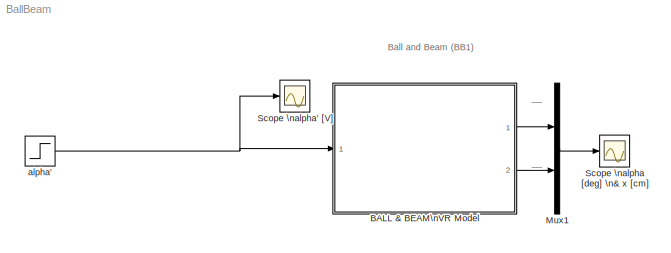
MODEL BallBeam
KIND model
CONFIG InitFcn = g = 9.81; %gravitational constant\n\n% showVR = 1; %show VR world\n% alpha_init = 0; %initial condition\n% x_init = 0; %initial condition
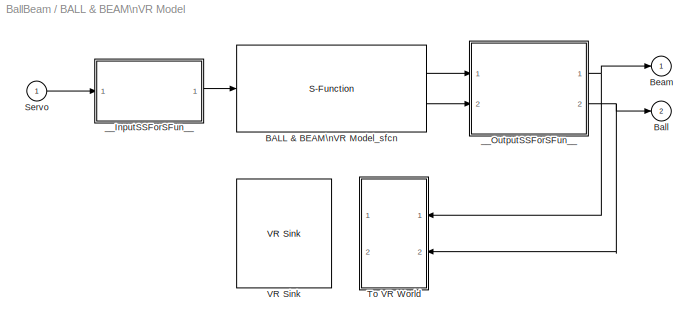
BLOCK [SubSystem] BALL & BEAM\nVR Model
  FunctionWithSeparateData = off
  MaskCallbackString = if strcmp('off',get_param(gcb,'showVR'))\n    vrclose all;\nelse\n    if exist('figureVR')==0\n        figureVR = vrfigure;\n    end  \n    if exist('worldVR')==0\n        worldVR = vrworld('BallBeam_VR.WRL');\n    end\n	if isvalid(figureVR)==0\n        open(worldVR);\n        figureVR = vrfigure(worldVR,[650 80 550 350]);\n	end\nend||
  MaskDescription = Ball and Beam (BB1) in laboratory K26 - Virtual Reality
  MaskDisplay = image(imread('BallBeam_Image.jpg'));\nport_label ('input',1,'alpha'' [V]');\nport_label ('output',1,'alpha [deg]');\nport_label ('output',2,'x [cm]');
  MaskEnableString = on,on,on
  MaskHelp = Ball and Beam in laboratory K26 - Virtual Reality. <br><br>\n\n\nThis is a virtual model of the Ball and Beam apparatus in Laboratory of automatic control \ntheory&nbsp;26 (<a href=\"http://support.dce.felk.cvut.cz/lab26/\" target=\"_blank\">http://support.dce.felk.cvut.cz/lab26/</a>), \nwhich consists of a&nbsp;beam and a&nbsp;ball. The&nbsp;ball is moving on the&nbsp;beam. The&nbsp;beam angle \n...<+806ch>
  MaskHideContents = off
  MaskIconFrame = on
  MaskIconOpaque = on
  MaskIconRotate = none
  MaskIconUnits = autoscale
  MaskPortRotate = default
  MaskPromptString = Show VirtualWorld?|Initial angle of the beam  alpha(0)  [deg]|Initial position of the ball  x(0) [cm]
  MaskStyleString = checkbox,edit,edit
  MaskToolTipString = on,on,on
  MaskTunableValueString = on,on,on
  MaskType = Ball and Beam (BB1) in laboratory K26
  MaskValueString = on|0|0
  MaskVariables = showVR=@1;sfcnParam1=@2;sfcnParam2=@3;
  MaskVisibilityString = on,on,on
  MinAlgLoopOccurrences = off
  Opaque = off
  Ports = [1, 2]
  PropExecContextOutsideSubsystem = off
  RTWSystemCode = Auto
  RequestExecContextInheritance = off
  SID = 1
BLOCK [S-Function] BALL & BEAM\nVR Model/BALL & BEAM\nVR Model_sfcn
  CopyFcn = set_param(gcb,'LinkStatus','none');
  EnableBusSupport = off
  FunctionName = BALL_sf
  MaskCallbackString = |||
  MaskDescription = Real-Time Workshop generated S-function.
  MaskDisplay = \nport_label('input',1,'Servo');\nport_label('output',1,'Beam');\nport_label('output',2,'Ball');
  MaskEnableString = on,on,on,on
  MaskHelp = helpview([docroot,'<path>'],'rtw_Sfunc_target');
  MaskIconFrame = on
  MaskIconOpaque = on
  MaskIconRotate = none
  MaskIconUnits = autoscale
  MaskInitialization = displist = '';\nif ~strcmp(get_param(gcb, 'FunctionName'), rtw_sf_name);\n  set_param(gcb, 'FunctionName', rtw_sf_name);\nend\n% Check if we are generating RTW code\nrtw_mode = false;\nif strcmpi(get_param(bdroot(gcb),'SimulationStatus'),'Initializing')\n	rtw_mode = strcmpi(get_param(bdroot(gcb),'BuildingRTWCode'),'on') && ...\n		~strcmpi(get_param(bdroot(gcb),'TargetStyle'),'SimulationTarget');\n...<+297ch>
  MaskPortRotate = default
  MaskPromptString = Generated S-function name (model_sf):|Show module list|alpha_init:|x_init:
  MaskStyleString = edit,checkbox,edit,edit
  MaskToolTipString = on,on,on,on
  MaskTunableValueString = on,on,on,on
  MaskValueString = BALL_sf|off|sfcnParam1|sfcnParam2
  MaskVariables = rtw_sf_name=&1;showVar=@2;sfcnParam1=@3;sfcnParam2=@4;
  MaskVisibilityString = on,on,on,on
  Parameters = sfcnParam1, sfcnParam2
  Ports = [1, 2]
  SID = 3
BLOCK [Outport] BALL & BEAM\nVR Model/Ball
  DataType = double
  IconDisplay = Port number
  OutDataType = sfix(16)
  OutDataTypeStr = double
  OutScaling = 2^0
  Port = 2
  PortDimensions = 1
  SID = 28
  SampleTime = [-1 0]
  SignalType = real
BLOCK [Outport] BALL & BEAM\nVR Model/Beam
  DataType = double
  IconDisplay = Port number
  OutDataType = sfix(16)
  OutDataTypeStr = double
  OutScaling = 2^0
  PortDimensions = 1
  SID = 27
  SampleTime = [-1 0]
  SignalType = real
BLOCK [Inport] BALL & BEAM\nVR Model/Servo
  IconDisplay = Port number
  OutDataType = sfix(16)
  OutScaling = 2^0
  SID = 2
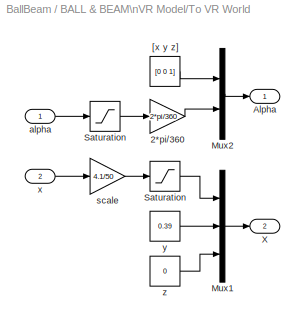
BLOCK [SubSystem] BALL & BEAM\nVR Model/To VR World
  FunctionWithSeparateData = off
  MaskHideContents = off
  MinAlgLoopOccurrences = off
  Opaque = off
  Ports = [2, 2]
  PropExecContextOutsideSubsystem = off
  RTWSystemCode = Auto
  RequestExecContextInheritance = off
  SID = 4
BLOCK [Gain] BALL & BEAM\nVR Model/To VR World/2*pi//360
  Gain = 2*pi/360
  OutDataType = sfix(16)
  OutDataTypeMode = Inherit via internal rule
  OutDataTypeStr = Inherit: Inherit via internal rule
  OutScaling = 2^0
  ParamDataTypeStr = Inherit: Inherit via internal rule
  ParameterDataType = sfix(16)
  ParameterDataTypeMode = Inherit via internal rule
  ParameterScaling = 2^0
  SID = 7
  SaturateOnIntegerOverflow = off
BLOCK [Outport] BALL & BEAM\nVR Model/To VR World/Alpha
  IconDisplay = Port number
  OutDataType = sfix(16)
  OutScaling = 2^0
  SID = 16
BLOCK [Mux] BALL & BEAM\nVR Model/To VR World/Mux1
  DisplayOption = bar
  Inputs = 3
  Ports = [3, 1]
  SID = 8
BLOCK [Mux] BALL & BEAM\nVR Model/To VR World/Mux2
  DisplayOption = bar
  Inputs = 2
  Ports = [2, 1]
  SID = 9
BLOCK [Saturate] BALL & BEAM\nVR Model/To VR World/Saturation
  LowerLimit = -4.1
  Ports = [1, 1]
  SID = 10
  UpperLimit = 4.1
BLOCK [Saturate] BALL & BEAM\nVR Model/To VR World/Saturation 
  LowerLimit = -15
  Ports = [1, 1]
  SID = 11
  UpperLimit = 15
BLOCK [Outport] BALL & BEAM\nVR Model/To VR World/X
  IconDisplay = Port number
  OutDataType = sfix(16)
  OutScaling = 2^0
  Port = 2
  SID = 17
BLOCK [Constant] BALL & BEAM\nVR Model/To VR World/[x y z]
  OutDataType = sfix(16)
  OutScaling = 2^0
  SID = 12
  Value = [0 0 1]
BLOCK [Inport] BALL & BEAM\nVR Model/To VR World/alpha
  IconDisplay = Port number
  OutDataType = sfix(16)
  OutScaling = 2^0
  SID = 5
BLOCK [Gain] BALL & BEAM\nVR Model/To VR World/scale
  Gain = 4.1/50
  OutDataType = sfix(16)
  OutDataTypeMode = Inherit via internal rule
  OutDataTypeStr = Inherit: Inherit via internal rule
  OutScaling = 2^0
  ParamDataTypeStr = Inherit: Inherit via internal rule
  ParameterDataType = sfix(16)
  ParameterDataTypeMode = Inherit via internal rule
  ParameterScaling = 2^0
  SID = 13
  SaturateOnIntegerOverflow = off
BLOCK [Inport] BALL & BEAM\nVR Model/To VR World/x
  IconDisplay = Port number
  OutDataType = sfix(16)
  OutScaling = 2^0
  Port = 2
  SID = 6
BLOCK [Constant] BALL & BEAM\nVR Model/To VR World/y
  OutDataType = sfix(16)
  OutScaling = 2^0
  SID = 14
  Value = 0.39
BLOCK [Constant] BALL & BEAM\nVR Model/To VR World/z
  OutDataType = sfix(16)
  OutScaling = 2^0
  SID = 15
  Value = 0
BLOCK [Reference] BALL & BEAM\nVR Model/VR Sink  REF=vrlib/VR Sink
  AutoView = off
  FieldsWritten = Beam.rotation.4.1.double#ball.translation.3.1.double
  InstantiateOnLoad = on
  Ports = [2]
  RemoteChange = off
  RemoteView = on
  SID = 18
  SampleTime = 0.1
  SourceBlock = vrlib/VR Sink
  SourceType = Virtual Reality Sink
  VideoDimensions = []
  ViewEnable = on
  WorldFileName = BallBeam_VR.WRL
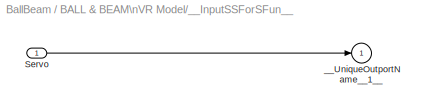
BLOCK [SubSystem] BALL & BEAM\nVR Model/__InputSSForSFun__
  FunctionWithSeparateData = off
  MaskHideContents = off
  MinAlgLoopOccurrences = off
  Opaque = off
  PermitHierarchicalResolution = ExplicitOnly
  Ports = [1, 1]
  PropExecContextOutsideSubsystem = off
  RTWSystemCode = Auto
  RequestExecContextInheritance = off
  SID = 19
BLOCK [Inport] BALL & BEAM\nVR Model/__InputSSForSFun__/Servo
  IconDisplay = Port number
  OutDataType = sfix(16)
  OutScaling = 2^0
  SID = 20
BLOCK [Outport] BALL & BEAM\nVR Model/__InputSSForSFun__/__UniqueOutportName__1__
  IconDisplay = Port number
  OutDataType = sfix(16)
  OutScaling = 2^0
  SID = 21
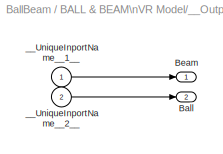
BLOCK [SubSystem] BALL & BEAM\nVR Model/__OutputSSForSFun__
  FunctionWithSeparateData = off
  MaskHideContents = off
  MinAlgLoopOccurrences = off
  Opaque = off
  PermitHierarchicalResolution = ExplicitOnly
  Ports = [2, 2]
  PropExecContextOutsideSubsystem = off
  RTWSystemCode = Auto
  RequestExecContextInheritance = off
  SID = 22
BLOCK [Outport] BALL & BEAM\nVR Model/__OutputSSForSFun__/Ball
  DataType = double
  IconDisplay = Port number
  OutDataType = sfix(16)
  OutDataTypeStr = double
  OutScaling = 2^0
  Port = 2
  PortDimensions = 1
  SID = 26
  SampleTime = [-1 0]
  SignalType = real
BLOCK [Outport] BALL & BEAM\nVR Model/__OutputSSForSFun__/Beam
  DataType = double
  IconDisplay = Port number
  OutDataType = sfix(16)
  OutDataTypeStr = double
  OutScaling = 2^0
  PortDimensions = 1
  SID = 25
  SampleTime = [-1 0]
  SignalType = real
BLOCK [Inport] BALL & BEAM\nVR Model/__OutputSSForSFun__/__UniqueInportName__1__
  IconDisplay = Port number
  OutDataType = sfix(16)
  OutScaling = 2^0
  SID = 23
BLOCK [Inport] BALL & BEAM\nVR Model/__OutputSSForSFun__/__UniqueInportName__2__
  IconDisplay = Port number
  OutDataType = sfix(16)
  OutScaling = 2^0
  Port = 2
  SID = 24
BLOCK [Mux] Mux1
  DisplayOption = bar
  Inputs = 2
  Ports = [2, 1]
  SID = 29
BLOCK [Scope] Scope \nalpha [deg] \n& x [cm]
  DataFormat = Array
  Floating = off
  MaxDataPoints = 500000
  NumInputPorts = 1
  Ports = [1]
  SID = 30
  SampleTime = 0
  SaveName = ty
  SaveToWorkspace = on
  TimeRange = 5
  YMax = 50
  YMin = -10
BLOCK [Scope] Scope \nalpha' [V]
  DataFormat = Array
  Floating = off
  MaxDataPoints = 500000
  NumInputPorts = 1
  Ports = [1]
  SID = 31
  SampleTime = 0
  SaveName = tu
  SaveToWorkspace = on
  TimeRange = 5
  YMax = 10
  YMin = -10
BLOCK [Step] alpha'
  After = 5
  SID = 32
  SampleTime = 0
ANNOTATION (root): Ball and Beam (BB1)
ANNOTATION (root): __
LINE BALL & BEAM\nVR Model/BALL & BEAM\nVR Model_sfcn:1 -> BALL & BEAM\nVR Model/__OutputSSForSFun__:1
LINE BALL & BEAM\nVR Model/BALL & BEAM\nVR Model_sfcn:2 -> BALL & BEAM\nVR Model/__OutputSSForSFun__:2
LINE BALL & BEAM\nVR Model/Servo:1 -> BALL & BEAM\nVR Model/__InputSSForSFun__:1
LINE BALL & BEAM\nVR Model/To VR World/2*pi//360:1 -> BALL & BEAM\nVR Model/To VR World/Mux2:2
LINE BALL & BEAM\nVR Model/To VR World/Mux1:1 -> BALL & BEAM\nVR Model/To VR World/X:1
LINE BALL & BEAM\nVR Model/To VR World/Mux2:1 -> BALL & BEAM\nVR Model/To VR World/Alpha:1
LINE BALL & BEAM\nVR Model/To VR World/Saturation :1 -> BALL & BEAM\nVR Model/To VR World/2*pi//360:1
LINE BALL & BEAM\nVR Model/To VR World/Saturation:1 -> BALL & BEAM\nVR Model/To VR World/Mux1:1
LINE BALL & BEAM\nVR Model/To VR World/[x y z]:1 -> BALL & BEAM\nVR Model/To VR World/Mux2:1
LINE BALL & BEAM\nVR Model/To VR World/alpha:1 -> BALL & BEAM\nVR Model/To VR World/Saturation :1
LINE BALL & BEAM\nVR Model/To VR World/scale:1 -> BALL & BEAM\nVR Model/To VR World/Saturation:1
LINE BALL & BEAM\nVR Model/To VR World/x:1 -> BALL & BEAM\nVR Model/To VR World/scale:1
LINE BALL & BEAM\nVR Model/To VR World/y:1 -> BALL & BEAM\nVR Model/To VR World/Mux1:2
LINE BALL & BEAM\nVR Model/To VR World/z:1 -> BALL & BEAM\nVR Model/To VR World/Mux1:3
LINE BALL & BEAM\nVR Model/__InputSSForSFun__/Servo:1 -> BALL & BEAM\nVR Model/__InputSSForSFun__/__UniqueOutportName__1__:1
LINE BALL & BEAM\nVR Model/__InputSSForSFun__:1 -> BALL & BEAM\nVR Model/BALL & BEAM\nVR Model_sfcn:1
LINE BALL & BEAM\nVR Model/__OutputSSForSFun__/__UniqueInportName__1__:1 -> BALL & BEAM\nVR Model/__OutputSSForSFun__/Beam:1
LINE BALL & BEAM\nVR Model/__OutputSSForSFun__/__UniqueInportName__2__:1 -> BALL & BEAM\nVR Model/__OutputSSForSFun__/Ball:1
NET BALL & BEAM\nVR Model/__OutputSSForSFun__:1 -> BALL & BEAM\nVR Model/Beam:1, BALL & BEAM\nVR Model/To VR World:1
NET BALL & BEAM\nVR Model/__OutputSSForSFun__:2 -> BALL & BEAM\nVR Model/Ball:1, BALL & BEAM\nVR Model/To VR World:2
LINE BALL & BEAM\nVR Model:1 -> Mux1:1
LINE BALL & BEAM\nVR Model:2 -> Mux1:2
LINE Mux1:1 -> Scope \nalpha [deg] \n& x [cm]:1
NET alpha':1 -> BALL & BEAM\nVR Model:1, Scope \nalpha' [V]:1
note: NET lines group one-source signal fan-out (src -> all destinations, sorted); 1:1 wires keep LINE
note: 1 file-system path scrubbed to <path> (not preserved elsewhere — flat text is the only slx artifact)
